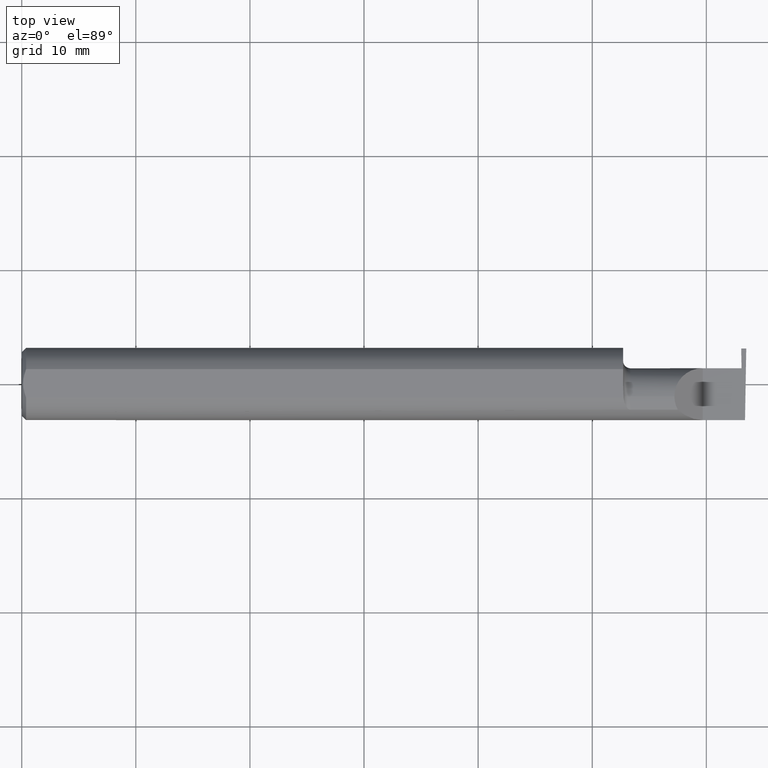
[diagram: clean part render]
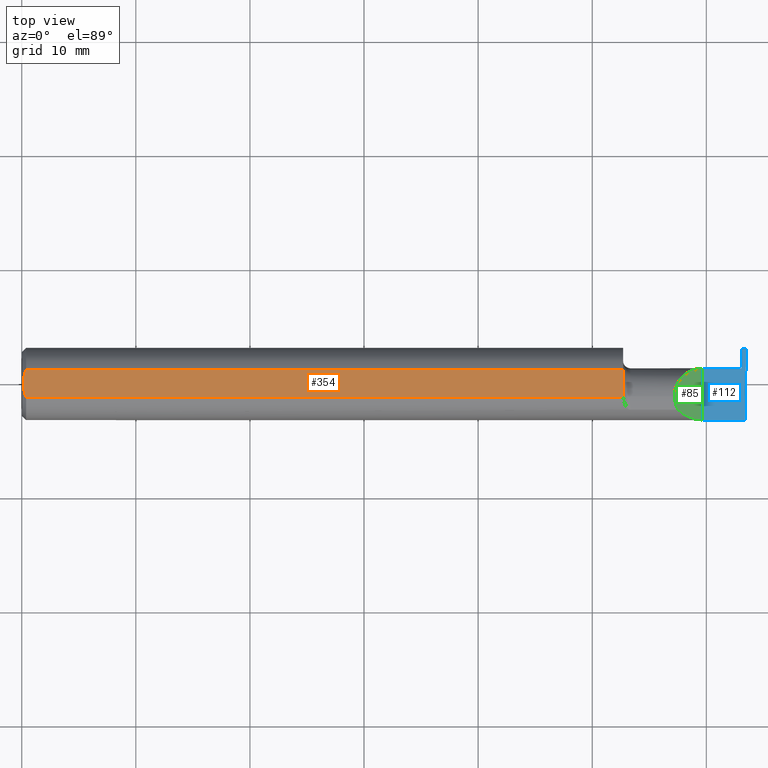
[diagram: same view with three faces highlighted in distinct colors, each labeled with its STEP entity id]
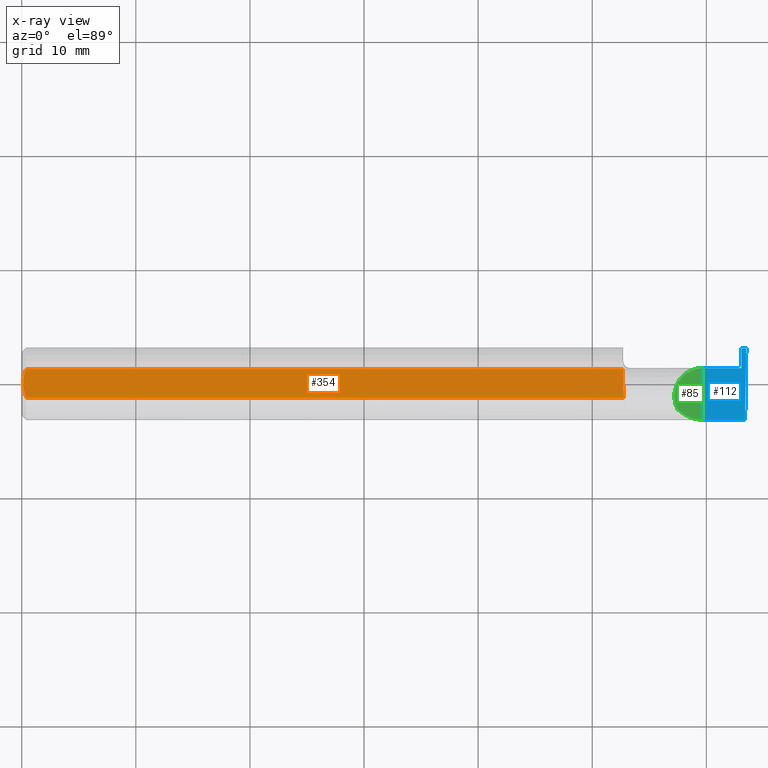
[diagram: x-ray of the same camera — body ghosted, the three highlighted faces saturated]
A machine part, top view with three faces highlighted in distinct colors.
The next image is the same camera in x-ray (body ghosted, the three faces saturated) — at least one of them is partly hidden behind the body in this view.
Their STEP definitions:

[orange] entity #354 — the highlighted planar face has unit normal (0, -0, 1).
#4 = VECTOR ( 'NONE', #729, 39.37007874015748143 ) ;
#13 = AXIS2_PLACEMENT_3D ( 'NONE', #504, #312, #618 ) ;
#17 = CARTESIAN_POINT ( 'NONE',  ( 2.076326891871132840, -0.04895916665958125608, 0.1148500000000000076 ) ) ;
#20 = ORIENTED_EDGE ( 'NONE', *, *, #435, .T. ) ;
#42 = CARTESIAN_POINT ( 'NONE',  ( 0.004999999999999990563, 1.454187663965904829E-17, 0.1148500000000000076 ) ) ;
#60 = CARTESIAN_POINT ( 'NONE',  ( 2.076365755776839350, -0.03650543323727818007, 0.1148500000000000215 ) ) ;
#104 = CARTESIAN_POINT ( 'NONE',  ( 0.004999999999999962808, 0.008410227287019804779, 0.1148500000000000076 ) ) ;
#118 = CARTESIAN_POINT ( 'NONE',  ( 2.076365755776839794, -0.04385000000000001397, 0.1148500000000000076 ) ) ;
#128 = CARTESIAN_POINT ( 'NONE',  ( 2.075000000000000178, -0.1248500000000000165, 0.1148500000000000076 ) ) ;
#160 = CARTESIAN_POINT ( 'NONE',  ( 0.009415874254822407391, -0.03313958207962815206, 0.1148500000000000076 ) ) ;
#162 = ORIENTED_EDGE ( 'NONE', *, *, #401, .T. ) ;
#163 = CARTESIAN_POINT ( 'NONE',  ( 0.004999999999999964542, -0.008410771716546819321, 0.1148500000000000215 ) ) ;
#166 = CARTESIAN_POINT ( 'NONE',  ( 0.004999999999999990563, 1.454187663965904829E-17, 0.1148500000000000076 ) ) ;
#186 = CARTESIAN_POINT ( 'NONE',  ( 2.076365755776839794, -0.04385000000000001397, 0.1148500000000000076 ) ) ;
#190 = VECTOR ( 'NONE', #749, 39.37007874015748143 ) ;
#201 = B_SPLINE_CURVE_WITH_KNOTS ( 'NONE', 3,
 ( #118, #60, #434, #370, #563, #741 ),
 .UNSPECIFIED., .F., .F.,
 ( 4, 2, 4 ),
 ( 0.009485158816280108221, 0.01004274199597733272, 0.01060032517567455548 ),
 .UNSPECIFIED. ) ;
#211 = VERTEX_POINT ( 'NONE', #715 ) ;
#222 = CARTESIAN_POINT ( 'NONE',  ( 2.076362484150211962, -0.04555293709217373560, 0.1148500000000000076 ) ) ;
#226 = CARTESIAN_POINT ( 'NONE',  ( 0.01499999999999999944, -0.04895916665957456698, 0.1148500000000000076 ) ) ;
#260 = VERTEX_POINT ( 'NONE', #718 ) ;
#296 = CARTESIAN_POINT ( 'NONE',  ( 2.076365755776839794, -0.04470142088177658790, 0.1148500000000000076 ) ) ;
#312 = DIRECTION ( 'NONE',  ( 0.000000000000000000, -0.000000000000000000, 1.000000000000000000 ) ) ;
#325 = ORIENTED_EDGE ( 'NONE', *, *, #559, .T. ) ;
#327 = LINE ( 'NONE', #582, #190 ) ;
#339 = CARTESIAN_POINT ( 'NONE',  ( 0.009410502401328750890, 0.03310661131402438395, 0.1148499999999999938 ) ) ;
#346 = CARTESIAN_POINT ( 'NONE',  ( 2.076365755776839794, -0.04385000000000001397, 0.1148500000000000076 ) ) ;
#354 = ADVANCED_FACE ( 'NONE', ( #379 ), #427, .T. ) ;
#365 = LINE ( 'NONE', #128, #4 ) ;
#368 = VERTEX_POINT ( 'NONE', #667 ) ;
#370 = CARTESIAN_POINT ( 'NONE',  ( 2.075400391910593445, -0.01449986171080060865, 0.1148500000000000076 ) ) ;
#371 = EDGE_CURVE ( 'NONE', #409, #211, #201, .T. ) ;
#379 = FACE_OUTER_BOUND ( 'NONE', #651, .T. ) ;
#380 = VERTEX_POINT ( 'NONE', #552 ) ;
#384 = B_SPLINE_CURVE_WITH_KNOTS ( 'NONE', 3,
 ( #652, #413, #532, #222, #296, #346 ),
 .UNSPECIFIED., .F., .F.,
 ( 4, 2, 4 ),
 ( 0.009355882855462056488, 0.009420520835871082355, 0.009485158816280108221 ),
 .UNSPECIFIED. ) ;
#401 = EDGE_CURVE ( 'NONE', #260, #368, #432, .T. ) ;
#407 = CARTESIAN_POINT ( 'NONE',  ( 0.005947935873631229539, 0.01679708999422689641, 0.1148500000000000076 ) ) ;
#409 = VERTEX_POINT ( 'NONE', #186 ) ;
#410 = CARTESIAN_POINT ( 'NONE',  ( 0.005932194444709715242, -0.01671525318617308672, 0.1148499999999999938 ) ) ;
#413 = CARTESIAN_POINT ( 'NONE',  ( 2.076339737573306810, -0.04810771292240874353, 0.1148500000000000215 ) ) ;
#427 = PLANE ( 'NONE',  #13 ) ;
#432 = LINE ( 'NONE', #439, #693 ) ;
#433 = VERTEX_POINT ( 'NONE', #17 ) ;
#434 = CARTESIAN_POINT ( 'NONE',  ( 2.076090261609497389, -0.02916889382056601920, 0.1148499999999999938 ) ) ;
#435 = EDGE_CURVE ( 'NONE', #380, #433, #327, .T. ) ;
#439 = CARTESIAN_POINT ( 'NONE',  ( 0.000000000000000000, 0.04895916665957456698, 0.1148500000000000076 ) ) ;
#470 = ORIENTED_EDGE ( 'NONE', *, *, #371, .T. ) ;
#504 = CARTESIAN_POINT ( 'NONE',  ( 2.500000000000000000, -0.1248500000000000165, 0.1148500000000000076 ) ) ;
#532 = CARTESIAN_POINT ( 'NONE',  ( 2.076349474474282530, -0.04725615793152064537, 0.1148499999999999938 ) ) ;
#542 = VERTEX_POINT ( 'NONE', #695 ) ;
#543 = CARTESIAN_POINT ( 'NONE',  ( 0.01499999999999987454, 0.04895916665957496944, 0.1148500000000000076 ) ) ;
#552 = CARTESIAN_POINT ( 'NONE',  ( 0.01499999999999999944, -0.04895916665957456698, 0.1148500000000000076 ) ) ;
#559 = EDGE_CURVE ( 'NONE', #542, #380, #637, .T. ) ;
#560 = EDGE_CURVE ( 'NONE', #368, #542, #713, .T. ) ;
#563 = CARTESIAN_POINT ( 'NONE',  ( 2.075000000000000178, -0.007185469346090030650, 0.1148500000000000076 ) ) ;
#582 = CARTESIAN_POINT ( 'NONE',  ( 0.000000000000000000, -0.04895916665957456698, 0.1148500000000000076 ) ) ;
#589 = CARTESIAN_POINT ( 'NONE',  ( 0.01193974418109659125, 0.04115525648180412555, 0.1148500000000000215 ) ) ;
#591 = ORIENTED_EDGE ( 'NONE', *, *, #639, .T. ) ;
#612 = ORIENTED_EDGE ( 'NONE', *, *, #560, .T. ) ;
#618 = DIRECTION ( 'NONE',  ( 1.000000000000000000, 0.000000000000000000, -0.000000000000000000 ) ) ;
#637 = B_SPLINE_CURVE_WITH_KNOTS ( 'NONE', 3,
 ( #166, #163, #410, #160, #661, #226 ),
 .UNSPECIFIED., .F., .F.,
 ( 4, 2, 4 ),
 ( 0.003658435455108827606, 0.004289327297787134258, 0.004920219140465441343 ),
 .UNSPECIFIED. ) ;
#639 = EDGE_CURVE ( 'NONE', #433, #409, #384, .T. ) ;
#651 = EDGE_LOOP ( 'NONE', ( #20, #591, #470, #746, #162, #612, #325 ) ) ;
#652 = CARTESIAN_POINT ( 'NONE',  ( 2.076326891871132840, -0.04895916665958125608, 0.1148500000000000076 ) ) ;
#661 = CARTESIAN_POINT ( 'NONE',  ( 0.01195732443765547617, -0.04120008761723503027, 0.1148500000000000076 ) ) ;
#667 = CARTESIAN_POINT ( 'NONE',  ( 0.01499999999999987454, 0.04895916665957496944, 0.1148500000000000076 ) ) ;
#693 = VECTOR ( 'NONE', #738, 39.37007874015748143 ) ;
#695 = CARTESIAN_POINT ( 'NONE',  ( 0.004999999999999990563, 1.454187663965904829E-17, 0.1148500000000000076 ) ) ;
#713 = B_SPLINE_CURVE_WITH_KNOTS ( 'NONE', 3,
 ( #543, #589, #339, #407, #104, #42 ),
 .UNSPECIFIED., .F., .F.,
 ( 4, 2, 4 ),
 ( 0.002396733445051244405, 0.003027584450080036006, 0.003658435455108827606 ),
 .UNSPECIFIED. ) ;
#715 = CARTESIAN_POINT ( 'NONE',  ( 2.075000000000000622, 0.0001781444078671173391, 0.1148500000000000076 ) ) ;
#718 = CARTESIAN_POINT ( 'NONE',  ( 2.075000000000000178, 0.04895916665957496944, 0.1148500000000000076 ) ) ;
#729 = DIRECTION ( 'NONE',  ( -0.000000000000000000, 1.000000000000000000, 0.000000000000000000 ) ) ;
#738 = DIRECTION ( 'NONE',  ( -1.000000000000000000, -0.000000000000000000, -0.000000000000000000 ) ) ;
#741 = CARTESIAN_POINT ( 'NONE',  ( 2.075000000000000622, 0.0001781444078671173391, 0.1148500000000000076 ) ) ;
#746 = ORIENTED_EDGE ( 'NONE', *, *, #765, .T. ) ;
#749 = DIRECTION ( 'NONE',  ( 1.000000000000000000, 0.000000000000000000, 0.000000000000000000 ) ) ;
#765 = EDGE_CURVE ( 'NONE', #211, #260, #365, .T. ) ;

[blue] entity #112 — the highlighted planar face has unit normal (-0, 0, -1).
#18 = CARTESIAN_POINT ( 'NONE',  ( 2.350000000000000089, -0.2000000000000000111, 1.836970198721028825E-17 ) ) ;
#38 = LINE ( 'NONE', #541, #66 ) ;
#47 = CARTESIAN_POINT ( 'NONE',  ( 2.350000000000000089, 0.05414999999999988572, 1.836970198721028825E-17 ) ) ;
#61 = ORIENTED_EDGE ( 'NONE', *, *, #68, .F. ) ;
#66 = VECTOR ( 'NONE', #768, 39.37007874015748143 ) ;
#67 = VECTOR ( 'NONE', #136, 39.37007874015748143 ) ;
#68 = EDGE_CURVE ( 'NONE', #679, #275, #279, .T. ) ;
#78 = FACE_OUTER_BOUND ( 'NONE', #176, .T. ) ;
#83 = LINE ( 'NONE', #199, #233 ) ;
#92 = AXIS2_PLACEMENT_3D ( 'NONE', #210, #324, #389 ) ;
#99 = CARTESIAN_POINT ( 'NONE',  ( 2.482499999999999929, 0.05414999999999997593, 5.204738710087130603E-17 ) ) ;
#100 = EDGE_CURVE ( 'NONE', #275, #570, #750, .T. ) ;
#112 = ADVANCED_FACE ( 'NONE', ( #78 ), #755, .F. ) ;
#136 = DIRECTION ( 'NONE',  ( 1.000000000000000000, 0.000000000000000000, 0.000000000000000000 ) ) ;
#176 = EDGE_LOOP ( 'NONE', ( #61, #179, #712, #362, #691, #633, #429 ) ) ;
#179 = ORIENTED_EDGE ( 'NONE', *, *, #680, .T. ) ;
#195 = LINE ( 'NONE', #444, #67 ) ;
#197 = VERTEX_POINT ( 'NONE', #220 ) ;
#199 = CARTESIAN_POINT ( 'NONE',  ( 2.499999999999999556, 0.05415000000000005920, 4.902705984595532466E-32 ) ) ;
#210 = CARTESIAN_POINT ( 'NONE',  ( 2.500000000000000000, -0.2000000000000000111, 0.000000000000000000 ) ) ;
#215 = CARTESIAN_POINT ( 'NONE',  ( 2.495690077103728921, -0.1248499999950965084, 1.733801157256528502E-17 ) ) ;
#220 = CARTESIAN_POINT ( 'NONE',  ( 2.483684773821554170, 0.05415000000000000369, 1.807306943624157614E-17 ) ) ;
#223 = EDGE_CURVE ( 'NONE', #230, #334, #38, .T. ) ;
#230 = VERTEX_POINT ( 'NONE', #664 ) ;
#233 = VECTOR ( 'NONE', #387, 39.37007874015748143 ) ;
#275 = VERTEX_POINT ( 'NONE', #649 ) ;
#279 = LINE ( 'NONE', #530, #438 ) ;
#314 = DIRECTION ( 'NONE',  ( 0.01744642479411464761, 0.9998477995484629233, -2.135106780035675284E-18 ) ) ;
#324 = DIRECTION ( 'NONE',  ( -1.224646799147352221E-16, 0.000000000000000000, -1.000000000000000000 ) ) ;
#334 = VERTEX_POINT ( 'NONE', #787 ) ;
#359 = CARTESIAN_POINT ( 'NONE',  ( 2.494380489674781209, -0.1999019447116721915, 6.881915332554903690E-19 ) ) ;
#362 = ORIENTED_EDGE ( 'NONE', *, *, #660, .T. ) ;
#387 = DIRECTION ( 'NONE',  ( -1.000000000000000000, -1.575197027597345022E-15, 1.224646799147352221E-16 ) ) ;
#388 = VECTOR ( 'NONE', #577, 39.37007874015748143 ) ;
#389 = DIRECTION ( 'NONE',  ( -1.000000000000000000, 0.000000000000000000, 1.224646799147352221E-16 ) ) ;
#423 = DIRECTION ( 'NONE',  ( 0.01742050049977531337, -0.9998482515673753346, -2.130797594924657248E-18 ) ) ;
#429 = ORIENTED_EDGE ( 'NONE', *, *, #100, .F. ) ;
#438 = VECTOR ( 'NONE', #646, 39.37007874015748143 ) ;
#440 = VECTOR ( 'NONE', #314, 39.37007874015748854 ) ;
#444 = CARTESIAN_POINT ( 'NONE',  ( 2.075000000000000178, 0.05414999999999998981, 5.204748896376247001E-17 ) ) ;
#453 = EDGE_CURVE ( 'NONE', #197, #556, #83, .T. ) ;
#484 = LINE ( 'NONE', #724, #572 ) ;
#530 = CARTESIAN_POINT ( 'NONE',  ( 3.749399456654637998E-32, -0.1248500000000000026, 3.061616997868380676E-16 ) ) ;
#536 = EDGE_CURVE ( 'NONE', #570, #556, #195, .T. ) ;
#541 = CARTESIAN_POINT ( 'NONE',  ( 2.399999999999999911, 0.1221499999999999808, -3.306546357697866753E-19 ) ) ;
#556 = VERTEX_POINT ( 'NONE', #99 ) ;
#570 = VERTEX_POINT ( 'NONE', #47 ) ;
#572 = VECTOR ( 'NONE', #423, 39.37007874015748143 ) ;
#577 = DIRECTION ( 'NONE',  ( -0.000000000000000000, 1.000000000000000000, -0.000000000000000000 ) ) ;
#633 = ORIENTED_EDGE ( 'NONE', *, *, #536, .F. ) ;
#646 = DIRECTION ( 'NONE',  ( -1.000000000000000000, -0.000000000000000000, -0.000000000000000000 ) ) ;
#649 = CARTESIAN_POINT ( 'NONE',  ( 2.350000000000000089, -0.1248500000000000026, 1.836970198721028825E-17 ) ) ;
#660 = EDGE_CURVE ( 'NONE', #230, #197, #484, .T. ) ;
#664 = CARTESIAN_POINT ( 'NONE',  ( 2.482499999999999929, 0.1221499999999999808, -3.306546357697866753E-19 ) ) ;
#679 = VERTEX_POINT ( 'NONE', #215 ) ;
#680 = EDGE_CURVE ( 'NONE', #679, #334, #707, .T. ) ;
#691 = ORIENTED_EDGE ( 'NONE', *, *, #453, .T. ) ;
#707 = LINE ( 'NONE', #359, #440 ) ;
#712 = ORIENTED_EDGE ( 'NONE', *, *, #223, .F. ) ;
#724 = CARTESIAN_POINT ( 'NONE',  ( 2.488116473413796825, -0.2002070484001042538, 1.455312279637640045E-18 ) ) ;
#750 = LINE ( 'NONE', #18, #388 ) ;
#755 = PLANE ( 'NONE',  #92 ) ;
#768 = DIRECTION ( 'NONE',  ( 1.000000000000000000, -0.000000000000000000, -0.000000000000000000 ) ) ;
#787 = CARTESIAN_POINT ( 'NONE',  ( 2.500000000000000444, 0.1221499999999999808, 1.947508823608312588E-17 ) ) ;

[green] entity #85 — the highlighted planar face has unit normal (-0.7071, 0, -0.7071).
#18 = CARTESIAN_POINT ( 'NONE',  ( 2.350000000000000089, -0.2000000000000000111, 1.836970198721028825E-17 ) ) ;
#22 = FACE_OUTER_BOUND ( 'NONE', #217, .T. ) ;
#41 =( BOUNDED_CURVE ( )  B_SPLINE_CURVE ( 3, ( #533, #606, #594, #408 ),
 .UNSPECIFIED., .F., .F. ) 
 B_SPLINE_CURVE_WITH_KNOTS ( ( 4, 4 ),
 ( 0.000000000000000000, 1.570796326794896558 ),
 .UNSPECIFIED. ) 
 CURVE ( )  GEOMETRIC_REPRESENTATION_ITEM ( )  RATIONAL_B_SPLINE_CURVE ( ( 1.000000000000000000, 0.8047378541243649375, 0.8047378541243649375, 1.000000000000000000 ) ) 
 REPRESENTATION_ITEM ( '' )  );
#47 = CARTESIAN_POINT ( 'NONE',  ( 2.350000000000000089, 0.05414999999999988572, 1.836970198721028825E-17 ) ) ;
#59 = CARTESIAN_POINT ( 'NONE',  ( 2.287163018370355072, -0.1127002472623169216, 0.06283698162964553025 ) ) ;
#62 = CARTESIAN_POINT ( 'NONE',  ( 2.252000000000000668, -0.04385000000000001397, 0.09800000000000000377 ) ) ;
#71 = CARTESIAN_POINT ( 'NONE',  ( 2.263628075281542529, -0.09015216647662421812, 0.08637192471845822617 ) ) ;
#73 = ORIENTED_EDGE ( 'NONE', *, *, #735, .F. ) ;
#85 = ADVANCED_FACE ( 'NONE', ( #22 ), #764, .F. ) ;
#88 = DIRECTION ( 'NONE',  ( -0.7071067811865492381, 0.000000000000000000, -0.7071067811865459074 ) ) ;
#100 = EDGE_CURVE ( 'NONE', #275, #570, #750, .T. ) ;
#146 = CARTESIAN_POINT ( 'NONE',  ( 2.252000000000000668, -0.04385000000000001397, 0.09800000000000000377 ) ) ;
#150 =( BOUNDED_CURVE ( )  B_SPLINE_CURVE ( 3, ( #499, #426, #666, #62 ),
 .UNSPECIFIED., .F., .T. ) 
 B_SPLINE_CURVE_WITH_KNOTS ( ( 4, 4 ),
 ( 5.791092865617133434, 6.283185307179586232 ),
 .UNSPECIFIED. ) 
 CURVE ( )  GEOMETRIC_REPRESENTATION_ITEM ( )  RATIONAL_B_SPLINE_CURVE ( ( 1.000000000000000000, 0.9799220177372784946, 0.9799220177372784946, 1.000000000000000000 ) ) 
 REPRESENTATION_ITEM ( '' )  );
#189 = AXIS2_PLACEMENT_3D ( 'NONE', #686, #88, #573 ) ;
#209 = CARTESIAN_POINT ( 'NONE',  ( 2.263628075281542529, -0.09015216647662421812, 0.08637192471845822617 ) ) ;
#217 = EDGE_LOOP ( 'NONE', ( #73, #313, #539, #766 ) ) ;
#228 =( BOUNDED_CURVE ( )  B_SPLINE_CURVE ( 3, ( #677, #610, #59, #71 ),
 .UNSPECIFIED., .F., .F. ) 
 B_SPLINE_CURVE_WITH_KNOTS ( ( 4, 4 ),
 ( 4.712388980384690562, 5.476375539154175520 ),
 .UNSPECIFIED. ) 
 CURVE ( )  GEOMETRIC_REPRESENTATION_ITEM ( )  RATIONAL_B_SPLINE_CURVE ( ( 1.000000000000000000, 0.9519489620492029847, 0.9519489620492029847, 1.000000000000000000 ) ) 
 REPRESENTATION_ITEM ( '' )  );
#253 = EDGE_CURVE ( 'NONE', #425, #570, #41, .T. ) ;
#275 = VERTEX_POINT ( 'NONE', #649 ) ;
#313 = ORIENTED_EDGE ( 'NONE', *, *, #789, .F. ) ;
#388 = VECTOR ( 'NONE', #577, 39.37007874015748143 ) ;
#408 = CARTESIAN_POINT ( 'NONE',  ( 2.350000000000000089, 0.05414999999999988572, 1.836970198721028825E-17 ) ) ;
#425 = VERTEX_POINT ( 'NONE', #146 ) ;
#426 = CARTESIAN_POINT ( 'NONE',  ( 2.255955442396118560, -0.07583965973232772995, 0.09404455760388213958 ) ) ;
#499 = CARTESIAN_POINT ( 'NONE',  ( 2.263628075281542529, -0.09015216647662421812, 0.08637192471845822617 ) ) ;
#519 = VERTEX_POINT ( 'NONE', #209 ) ;
#533 = CARTESIAN_POINT ( 'NONE',  ( 2.252000000000000668, -0.04385000000000001397, 0.09800000000000000377 ) ) ;
#539 = ORIENTED_EDGE ( 'NONE', *, *, #100, .T. ) ;
#570 = VERTEX_POINT ( 'NONE', #47 ) ;
#573 = DIRECTION ( 'NONE',  ( -0.7071067811865459074, 0.000000000000000000, 0.7071067811865492381 ) ) ;
#577 = DIRECTION ( 'NONE',  ( -0.000000000000000000, 1.000000000000000000, -0.000000000000000000 ) ) ;
#594 = CARTESIAN_POINT ( 'NONE',  ( 2.292592929112563738, 0.05415000000000004532, 0.05740707088743669112 ) ) ;
#606 = CARTESIAN_POINT ( 'NONE',  ( 2.252000000000000668, 0.01355707088743670317, 0.09799999999999996214 ) ) ;
#610 = CARTESIAN_POINT ( 'NONE',  ( 2.317406910344188997, -0.1248500000000000304, 0.03259308965581166062 ) ) ;
#649 = CARTESIAN_POINT ( 'NONE',  ( 2.350000000000000089, -0.1248500000000000026, 1.836970198721028825E-17 ) ) ;
#666 = CARTESIAN_POINT ( 'NONE',  ( 2.252000000000000668, -0.06008937020638503712, 0.09799999999999998990 ) ) ;
#677 = CARTESIAN_POINT ( 'NONE',  ( 2.350000000000000089, -0.1248500000000000026, 1.836970198721028825E-17 ) ) ;
#686 = CARTESIAN_POINT ( 'NONE',  ( 2.350000000000000089, -0.2000000000000000111, 1.836970198721028825E-17 ) ) ;
#735 = EDGE_CURVE ( 'NONE', #519, #425, #150, .T. ) ;
#750 = LINE ( 'NONE', #18, #388 ) ;
#764 = PLANE ( 'NONE',  #189 ) ;
#766 = ORIENTED_EDGE ( 'NONE', *, *, #253, .F. ) ;
#789 = EDGE_CURVE ( 'NONE', #275, #519, #228, .T. ) ;